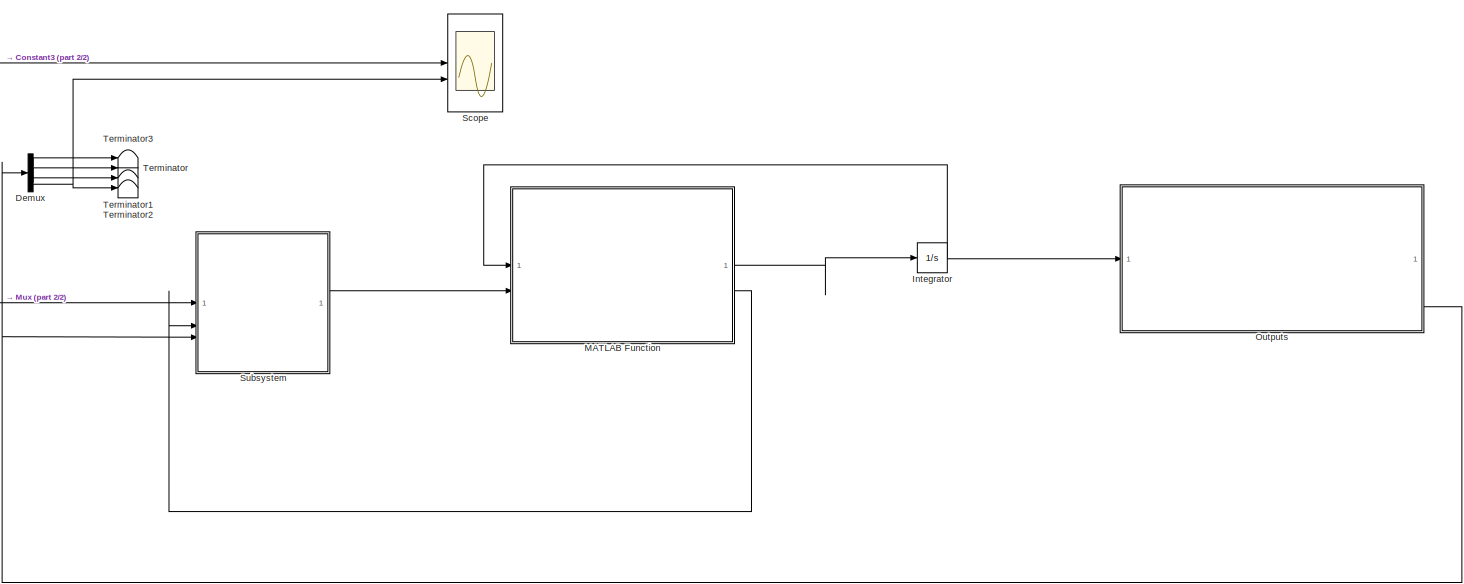
[diagram: root canvas - part 1/2, most of the canvas]
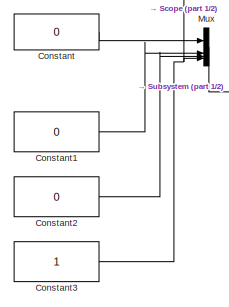
[diagram: root canvas - part 2/2, middle left region]
MODEL slx_e897f1955873
KIND model
CONFIG AbsTol = auto
CONFIG EnableMultiTasking = off
CONFIG FixedStep = auto
CONFIG MaxStep = auto
CONFIG MinStep = auto
CONFIG RelTol = 1e-3
CONFIG SampleTimeConstraint = Unconstrained
CONFIG SolverName = VariableStepAuto
CONFIG StartTime = 0.0
CONFIG StopTime = 10.0
WORKSPACE source: MATLAB code (in-file)
WORKSPACE rho = 1.225
WORKSPACE R = 0.355
WORKSPACE omega_w = 3000
WORKSPACE K = rho*pi*R^2 * (omega_w*R)^2  (= 550100.301596)
WORKSPACE l = 0.4
WORKSPACE m = 12
WORKSPACE g = 9.81
WORKSPACE I = diag([1.86, 2.031, 3.617])
WORKSPACE zeta_x = diag([0.95, 0.95, 0.95])
WORKSPACE omega_n_x = diag([5, 5, 5])
WORKSPACE zeta_q = diag([0.95, 0.95, 0.95, 0.95])
WORKSPACE omega_n_q = diag([25, 25, 25, 25])
WORKSPACE V_tip = omega_w * R  (= 1065)
WORKSPACE blade_area = pi * R^2  (= 0.395919214169)
WORKSPACE CT_init = (0.25*m*g/(rho*blade_area*V_tip^2))  (= 5.34993344207e-05)
BLOCK [Constant] Constant
  Value = 0
BLOCK [Constant] Constant1
  Value = 0
BLOCK [Constant] Constant2
  Value = 0
BLOCK [Constant] Constant3
BLOCK [Demux] Demux
BLOCK [Integrator] Integrator
  InitialCondition = [0; 0; 0; 0; 0; 0; 1; 0; 0; 0; 0; 0; 0; CT_init; CT_init; CT_init; CT_init]
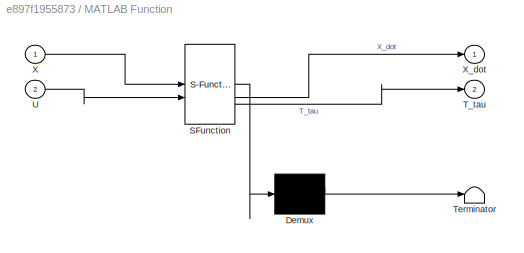
BLOCK [SubSystem] MATLAB Function
  ErrorFcn = Stateflow.Translate.translate
  PermitHierarchicalResolution = ExplicitOnly
  SFBlockType = MATLAB Function
  TreatAsAtomicUnit = on
BLOCK [Demux] MATLAB Function/ Demux 
  Outputs = 1
BLOCK [S-Function] MATLAB Function/ SFunction 
  EnableBusSupport = on
  FunctionName = sf_sfun
  PortCounts = [2 3]
  SFcnIsStateOwnerBlock = off
  SFunctionDeploymentMode = off
  Tag = Stateflow S-Function 2
BLOCK [Terminator] MATLAB Function/ Terminator 
BLOCK [Outport] MATLAB Function/T_tau
  Port = 2
BLOCK [Inport] MATLAB Function/U
  Port = 2
BLOCK [Inport] MATLAB Function/X
BLOCK [Outport] MATLAB Function/X_dot
BLOCK [Mux] Mux
  DisplayOption = bar
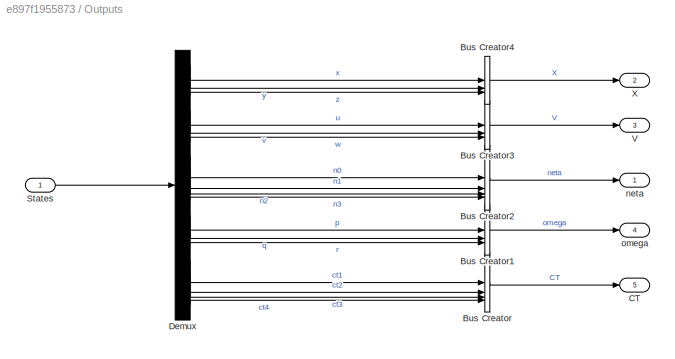
BLOCK [SubSystem] Outputs
BLOCK [BusCreator] Outputs/Bus Creator
  DisplayOption = bar
  InheritFromInputs = on
  Inputs = 4
BLOCK [BusCreator] Outputs/Bus Creator1
  DisplayOption = bar
  InheritFromInputs = on
  Inputs = 3
BLOCK [BusCreator] Outputs/Bus Creator2
  DisplayOption = bar
  InheritFromInputs = on
  Inputs = 4
BLOCK [BusCreator] Outputs/Bus Creator3
  DisplayOption = bar
  InheritFromInputs = on
  Inputs = 3
BLOCK [BusCreator] Outputs/Bus Creator4
  DisplayOption = bar
  InheritFromInputs = on
  Inputs = 3
BLOCK [Outport] Outputs/CT
  Port = 5
BLOCK [Demux] Outputs/Demux
  Outputs = 17
BLOCK [Inport] Outputs/States
BLOCK [Outport] Outputs/V
  Port = 3
BLOCK [Outport] Outputs/X
  Port = 2
BLOCK [Outport] Outputs/neta
BLOCK [Outport] Outputs/omega
  Port = 4
BLOCK [Scope] Scope
  Floating = off
  NumInputPorts = 2
  ScopeSpecificationString = Simulink.scopes.TimeScopeBlockCfg('CurrentConfiguration', extmgr.ConfigurationSet(extmgr.Configuration('Core','General UI',true),extmgr.Configuration('Core','Source UI',true),extmgr.Configuration('Sources','WiredSimulink',true),extmgr.Configuration('Visuals','Time Domain',true,'SerializedDisplays',{struct('MinYLimReal','-0.06234','MaxYLimReal','0.58162','YLabelReal','','MinYLimMag','0.00000','MaxY...<+1456ch>
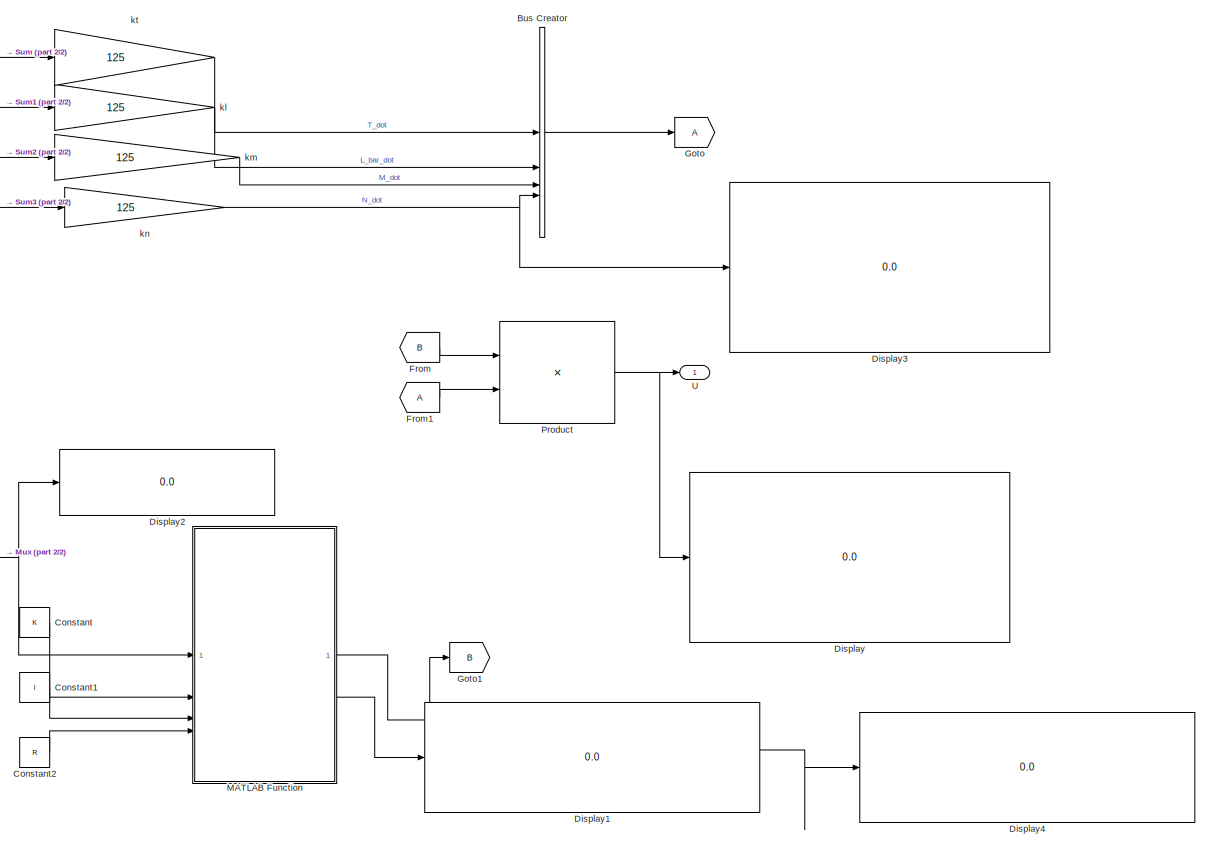
[diagram: Subsystem - part 1/2, right side, full height]
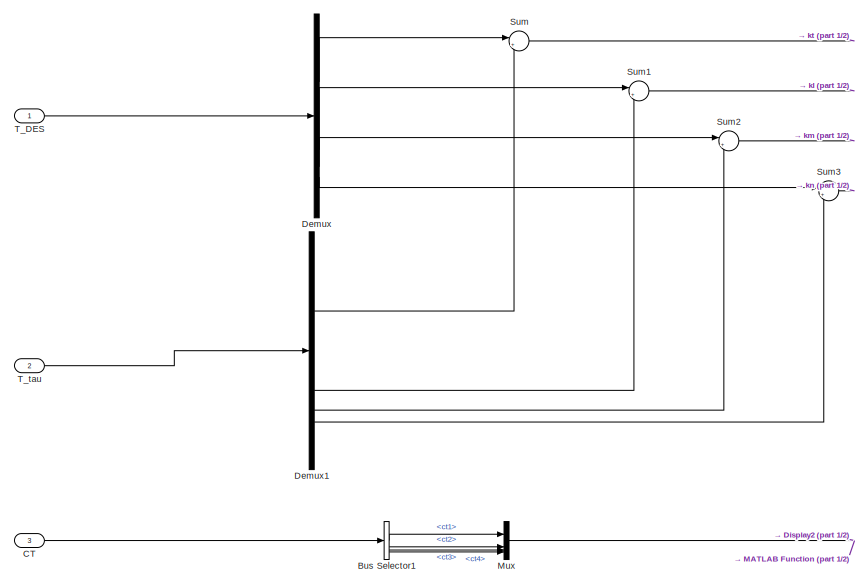
[diagram: Subsystem - part 2/2, middle left region]
BLOCK [SubSystem] Subsystem
BLOCK [BusCreator] Subsystem/Bus Creator
  DisplayOption = bar
  InheritFromInputs = on
  Inputs = 4
BLOCK [BusSelector] Subsystem/Bus Selector1
  OutputSignals = ct1,ct2,ct3,ct4
BLOCK [Inport] Subsystem/CT
  Port = 3
BLOCK [Constant] Subsystem/Constant
  Value = K
BLOCK [Constant] Subsystem/Constant1
  Value = l
BLOCK [Constant] Subsystem/Constant2
  Value = R
BLOCK [Demux] Subsystem/Demux
BLOCK [Demux] Subsystem/Demux1
BLOCK [Display] Subsystem/Display
  Decimation = 1
BLOCK [Display] Subsystem/Display1
  Decimation = 1
BLOCK [Display] Subsystem/Display2
  Decimation = 1
BLOCK [Display] Subsystem/Display3
  Decimation = 1
BLOCK [Display] Subsystem/Display4
  Decimation = 1
BLOCK [From] Subsystem/From
  GotoTag = B
BLOCK [From] Subsystem/From1
BLOCK [Goto] Subsystem/Goto
BLOCK [Goto] Subsystem/Goto1
  GotoTag = B
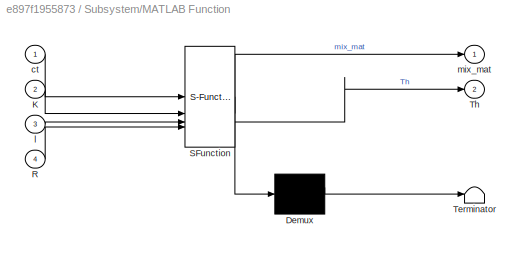
BLOCK [SubSystem] Subsystem/MATLAB Function
  ErrorFcn = Stateflow.Translate.translate
  PermitHierarchicalResolution = ExplicitOnly
  SFBlockType = MATLAB Function
  TreatAsAtomicUnit = on
BLOCK [Demux] Subsystem/MATLAB Function/ Demux 
  Outputs = 1
BLOCK [S-Function] Subsystem/MATLAB Function/ SFunction 
  EnableBusSupport = on
  FunctionName = sf_sfun
  PortCounts = [4 3]
  SFcnIsStateOwnerBlock = off
  SFunctionDeploymentMode = off
  Tag = Stateflow S-Function 1
BLOCK [Terminator] Subsystem/MATLAB Function/ Terminator 
BLOCK [Inport] Subsystem/MATLAB Function/K
  Port = 2
BLOCK [Inport] Subsystem/MATLAB Function/R
  Port = 4
BLOCK [Outport] Subsystem/MATLAB Function/Th
  Port = 2
BLOCK [Inport] Subsystem/MATLAB Function/ct
BLOCK [Inport] Subsystem/MATLAB Function/l
  Port = 3
BLOCK [Outport] Subsystem/MATLAB Function/mix_mat
BLOCK [Mux] Subsystem/Mux
  DisplayOption = bar
BLOCK [Product] Subsystem/Product
  Multiplication = Matrix(*)
BLOCK [Sum] Subsystem/Sum
  Inputs = |+-
BLOCK [Sum] Subsystem/Sum1
  Inputs = |+-
BLOCK [Sum] Subsystem/Sum2
  Inputs = |+-
BLOCK [Sum] Subsystem/Sum3
  Inputs = |+-
BLOCK [Inport] Subsystem/T_DES
BLOCK [Inport] Subsystem/T_tau
  Port = 2
BLOCK [Outport] Subsystem/U
BLOCK [Gain] Subsystem/kl
  Gain = 125
BLOCK [Gain] Subsystem/km
  Gain = 125
BLOCK [Gain] Subsystem/kn
  Gain = 125
BLOCK [Gain] Subsystem/kt
  Gain = 125
BLOCK [Terminator] Terminator
BLOCK [Terminator] Terminator1
BLOCK [Terminator] Terminator2
BLOCK [Terminator] Terminator3
LINE Constant1:1 -> Mux:2
LINE Constant2:1 -> Mux:3
NET Constant3:1 -> Mux:4, Scope:1
LINE Constant:1 -> Mux:1
LINE Demux:1 -> Terminator3:1
LINE Demux:2 -> Terminator:1
LINE Demux:3 -> Terminator1:1
NET Demux:4 -> Scope:2, Terminator2:1
NET Integrator:1 -> MATLAB Function:1, Outputs:1
LINE MATLAB Function:1 -> Integrator:1
LINE MATLAB Function:2 -> Subsystem:2
LINE Mux:1 -> Subsystem:1
LINE Outputs/Bus Creator1:1 -> Outputs/omega:1
LINE Outputs/Bus Creator2:1 -> Outputs/neta:1
LINE Outputs/Bus Creator3:1 -> Outputs/V:1
LINE Outputs/Bus Creator4:1 -> Outputs/X:1
LINE Outputs/Bus Creator:1 -> Outputs/CT:1
LINE Outputs/Demux:1 -> Outputs/Bus Creator4:1
LINE Outputs/Demux:10 -> Outputs/Bus Creator2:4
LINE Outputs/Demux:11 -> Outputs/Bus Creator1:1
LINE Outputs/Demux:12 -> Outputs/Bus Creator1:2
LINE Outputs/Demux:13 -> Outputs/Bus Creator1:3
LINE Outputs/Demux:14 -> Outputs/Bus Creator:1
LINE Outputs/Demux:15 -> Outputs/Bus Creator:2
LINE Outputs/Demux:16 -> Outputs/Bus Creator:3
LINE Outputs/Demux:17 -> Outputs/Bus Creator:4
LINE Outputs/Demux:2 -> Outputs/Bus Creator4:2
LINE Outputs/Demux:3 -> Outputs/Bus Creator4:3
LINE Outputs/Demux:4 -> Outputs/Bus Creator3:1
LINE Outputs/Demux:5 -> Outputs/Bus Creator3:2
LINE Outputs/Demux:6 -> Outputs/Bus Creator3:3
LINE Outputs/Demux:7 -> Outputs/Bus Creator2:1
LINE Outputs/Demux:8 -> Outputs/Bus Creator2:2
LINE Outputs/Demux:9 -> Outputs/Bus Creator2:3
LINE Outputs/States:1 -> Outputs/Demux:1
NET Outputs:5 -> Demux:1, Subsystem:3
LINE Subsystem/Bus Creator:1 -> Subsystem/Goto:1
LINE Subsystem/Bus Selector1:1 -> Subsystem/Mux:1
LINE Subsystem/Bus Selector1:2 -> Subsystem/Mux:2
LINE Subsystem/Bus Selector1:3 -> Subsystem/Mux:3
LINE Subsystem/Bus Selector1:4 -> Subsystem/Mux:4
LINE Subsystem/CT:1 -> Subsystem/Bus Selector1:1
LINE Subsystem/Constant1:1 -> Subsystem/MATLAB Function:3
LINE Subsystem/Constant2:1 -> Subsystem/MATLAB Function:4
LINE Subsystem/Constant:1 -> Subsystem/MATLAB Function:2
LINE Subsystem/Demux1:1 -> Subsystem/Sum:2
LINE Subsystem/Demux1:2 -> Subsystem/Sum1:2
LINE Subsystem/Demux1:3 -> Subsystem/Sum2:2
LINE Subsystem/Demux1:4 -> Subsystem/Sum3:2
LINE Subsystem/Demux:1 -> Subsystem/Sum:1
LINE Subsystem/Demux:2 -> Subsystem/Sum1:1
LINE Subsystem/Demux:3 -> Subsystem/Sum2:1
LINE Subsystem/Demux:4 -> Subsystem/Sum3:1
LINE Subsystem/From1:1 -> Subsystem/Product:2
LINE Subsystem/From:1 -> Subsystem/Product:1
NET Subsystem/MATLAB Function:1 -> Subsystem/Display4:1, Subsystem/Goto1:1
LINE Subsystem/MATLAB Function:2 -> Subsystem/Display1:1
NET Subsystem/Mux:1 -> Subsystem/Display2:1, Subsystem/MATLAB Function:1
NET Subsystem/Product:1 -> Subsystem/Display:1, Subsystem/U:1
LINE Subsystem/Sum1:1 -> Subsystem/kl:1
LINE Subsystem/Sum2:1 -> Subsystem/km:1
LINE Subsystem/Sum3:1 -> Subsystem/kn:1
LINE Subsystem/Sum:1 -> Subsystem/kt:1
LINE Subsystem/T_DES:1 -> Subsystem/Demux:1
LINE Subsystem/T_tau:1 -> Subsystem/Demux1:1
LINE Subsystem/kl:1 -> Subsystem/Bus Creator:2
LINE Subsystem/km:1 -> Subsystem/Bus Creator:3
NET Subsystem/kn:1 -> Subsystem/Bus Creator:4, Subsystem/Display3:1
LINE Subsystem/kt:1 -> Subsystem/Bus Creator:1
LINE Subsystem:1 -> MATLAB Function:2
note: NET lines group one-source signal fan-out (src -> all destinations, sorted); 1:1 wires keep LINE
CHART Subsystem/MATLAB Function states=1 transitions=1
  STATE_LABEL 'eML_blk_kernel()'
  STATE_LABEL 'SCRIPT:\nfunction [mix_mat, Th] = fcn(ct, K, l, R)\nct1 = ct(1);\nct2 = ct(2);\nct3 = ct(3);\nct4 = ct(4);\n\nTh = [K K K K ; K*l -K*l -K*l K*l; K*l K*l -K*l -K*l; \n    (3*K*R/2)*sqrt(abs(ct1)/2) -(3*K*R/2)*sqrt(abs(ct2)/2) (3*K*R/2)*sqrt(abs(ct3)/2) -(3*K*R/2)*sqrt(abs(ct4)/2)];\n\nmix_mat = pinv(Th);\n\n\n'
CHART MATLAB Function states=1 transitions=1
  STATE_LABEL 'eML_blk_kernel()'
  STATE_LABEL 'SCRIPT:\nfunction [X_dot, T_tau] = dynamics2(X,U)\n\n% k_t = 1e-3; % Thrust Coefficient\n\n%% Parameters\nm               = 12;                       % Mass in kg\ng               = 9.81;   \nl               = 0.40;                         % Arm length in m\nrho = 1.225;\nR               = 0.355;   \nomega_w = 3000;\nK               = rho * pi * R^2 * (omega_w * R)^2;\n\n\n\nI = diag([1.86, 2.031, 3.617]);\nI_x = ...<+2299ch>'
CHART  states=0 transitions=0
CHART  states=0 transitions=0
